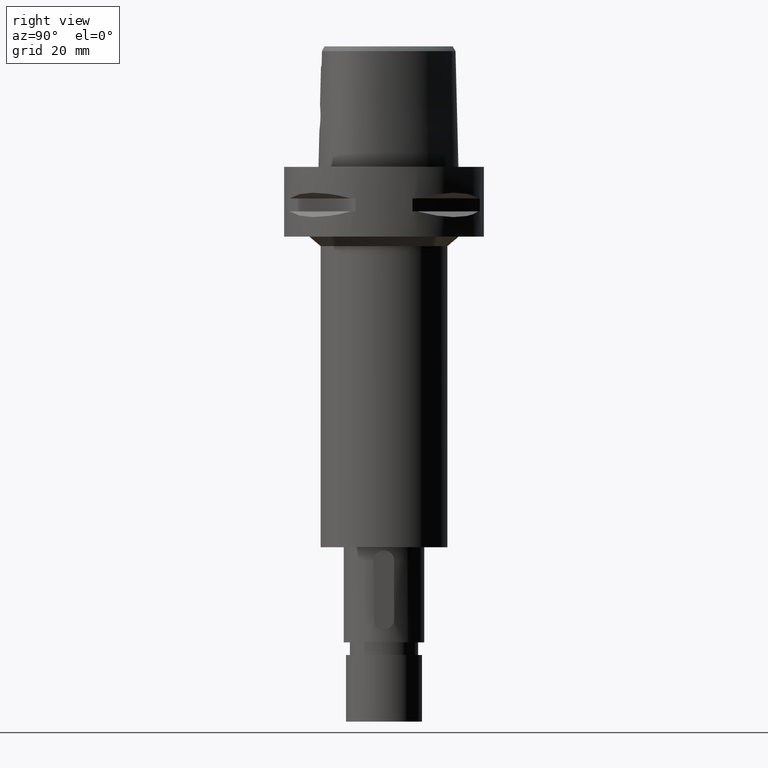
[diagram: clean part render]
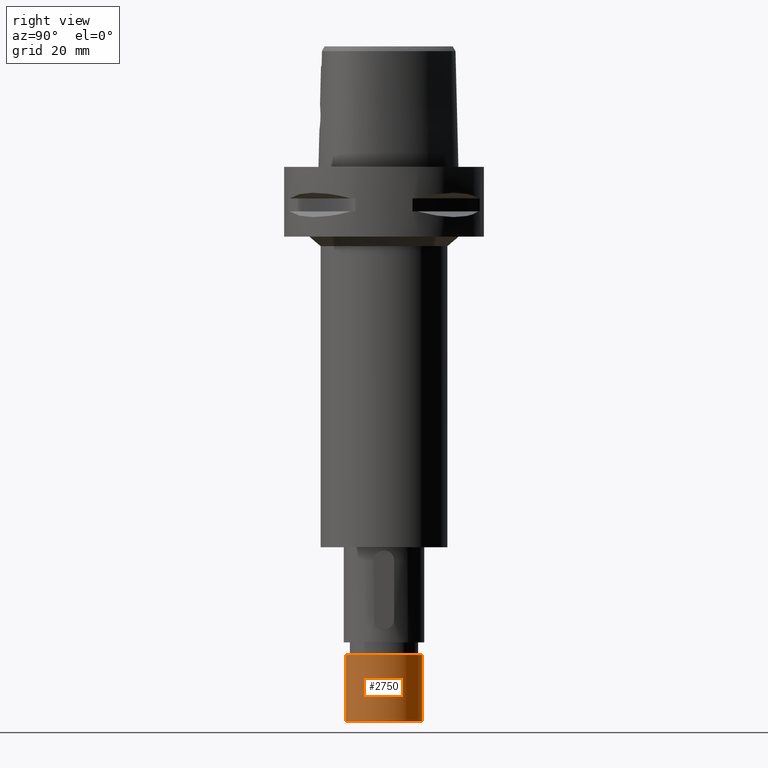
[diagram: same view with one face highlighted and labeled with its STEP entity id]
A machine part, right view. The second image highlights one B-rep face of the part: STEP entity #2750.
In plain terms, the highlighted cylindrical surface (partial cylindrical patch) has radius 12 mm, axis along (0, 0, -1).
Its self-contained STEP definition (entity closure, byte-faithful):
#665=CARTESIAN_POINT('',(0.E0,1.331803394073E-14,-1.54E2));
#666=DIRECTION('',(0.E0,0.E0,-1.E0));
#667=DIRECTION('',(0.E0,1.E0,0.E0));
#668=AXIS2_PLACEMENT_3D('',#665,#666,#667);
#697=DIRECTION('',(0.E0,0.E0,-1.E0));
#698=VECTOR('',#697,2.1E1);
#699=CARTESIAN_POINT('',(0.E0,1.2E1,-1.54E2));
#700=LINE('',#699,#698);
#704=DIRECTION('',(0.E0,0.E0,-1.E0));
#705=VECTOR('',#704,2.1E1);
#706=CARTESIAN_POINT('',(0.E0,-1.2E1,-1.54E2));
#707=LINE('',#706,#705);
#719=CARTESIAN_POINT('',(0.E0,1.331803394073E-14,-1.75E2));
#720=DIRECTION('',(0.E0,0.E0,1.E0));
#721=DIRECTION('',(0.E0,-1.E0,0.E0));
#722=AXIS2_PLACEMENT_3D('',#719,#720,#721);
#1689=CARTESIAN_POINT('',(0.E0,1.2E1,-1.54E2));
#1690=CARTESIAN_POINT('',(0.E0,-1.2E1,-1.54E2));
#1691=VERTEX_POINT('',#1689);
#1692=VERTEX_POINT('',#1690);
#1693=CARTESIAN_POINT('',(0.E0,1.2E1,-1.75E2));
#1694=VERTEX_POINT('',#1693);
#1695=CARTESIAN_POINT('',(0.E0,-1.2E1,-1.75E2));
#1696=VERTEX_POINT('',#1695);
#2736=CARTESIAN_POINT('',(0.E0,1.331803394073E-14,8.75E0));
#2737=DIRECTION('',(0.E0,0.E0,-1.E0));
#2738=DIRECTION('',(0.E0,-1.E0,0.E0));
#2739=AXIS2_PLACEMENT_3D('',#2736,#2737,#2738);
#2740=CYLINDRICAL_SURFACE('',#2739,1.2E1);
#2742=ORIENTED_EDGE('',*,*,#2741,.T.);
#2744=ORIENTED_EDGE('',*,*,#2743,.F.);
#2746=ORIENTED_EDGE('',*,*,#2745,.F.);
#2747=ORIENTED_EDGE('',*,*,#2725,.F.);
#2748=EDGE_LOOP('',(#2742,#2744,#2746,#2747));
#2749=FACE_OUTER_BOUND('',#2748,.F.);
#669=CIRCLE('',#668,1.2E1);
#723=CIRCLE('',#722,1.2E1);
#2725=EDGE_CURVE('',#1691,#1692,#669,.T.);
#2741=EDGE_CURVE('',#1691,#1694,#700,.T.);
#2743=EDGE_CURVE('',#1696,#1694,#723,.T.);
#2745=EDGE_CURVE('',#1692,#1696,#707,.T.);
#2750=ADVANCED_FACE('',(#2749),#2740,.T.);